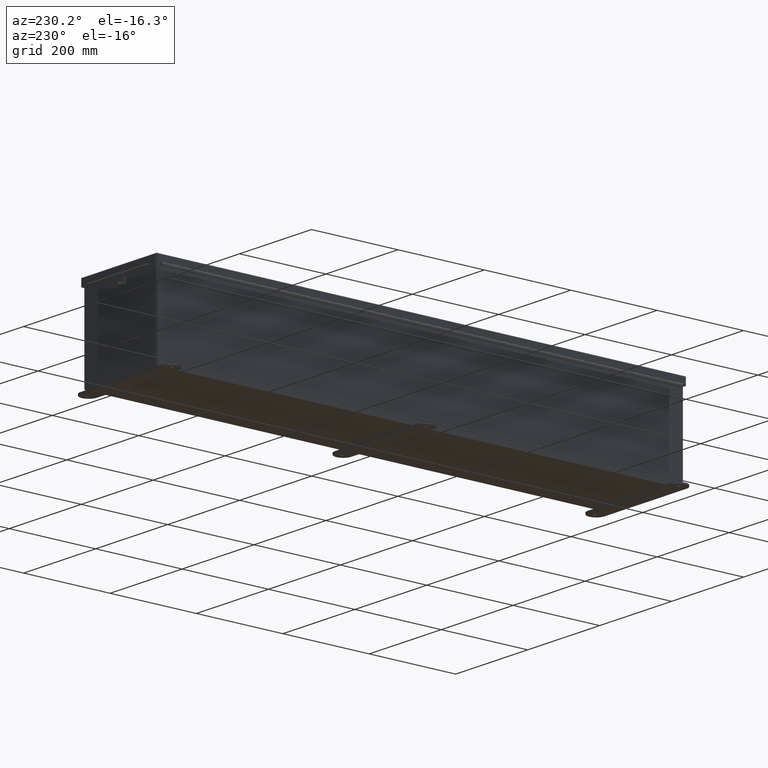
[diagram: clean part render]
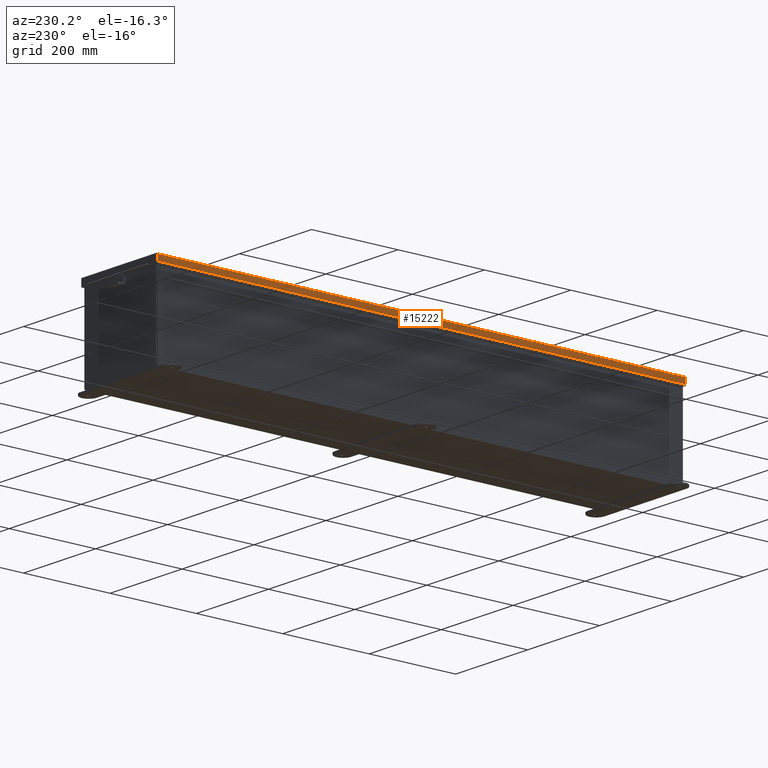
[diagram: same view with one face highlighted and labeled with its STEP entity id]
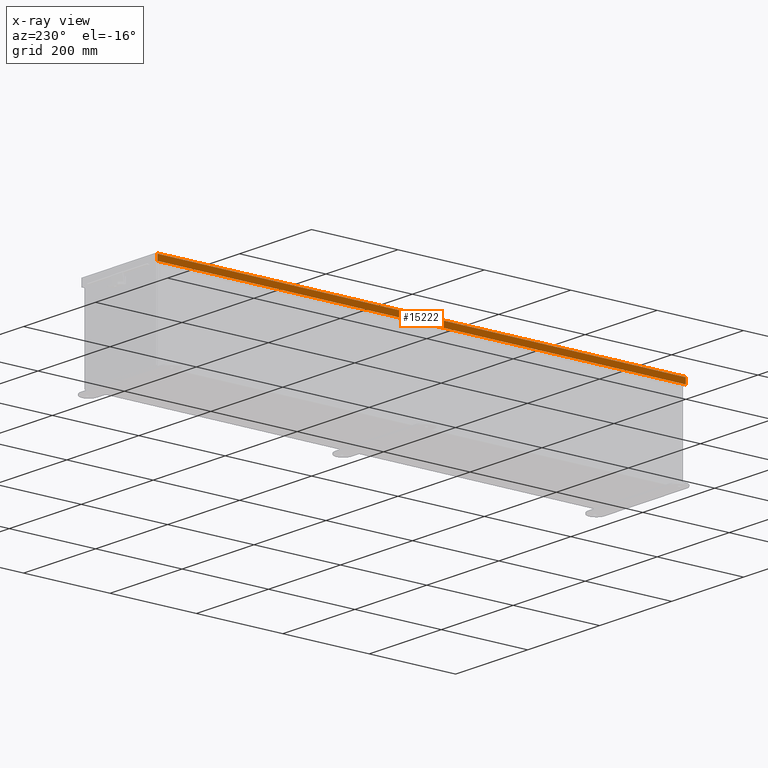
[diagram: x-ray of the same camera — body ghosted, the highlighted face saturated]
A machine part, auxiliary view. The second image highlights one B-rep face of the part: STEP entity #15222.
The next image is the same camera in x-ray: the body ghosted, the highlighted face saturated — about 0% of this face is hidden behind the body in this view.
In plain terms, the highlighted planar face has unit normal (1, -0, 0).
Its self-contained STEP definition (entity closure, byte-faithful):
#807 = VERTEX_POINT ( 'NONE', #23279 ) ;
#2626 = VERTEX_POINT ( 'NONE', #16813 ) ;
#5388 = CARTESIAN_POINT ( 'NONE',  ( 4.156250000000014200, 24.07447893218808600, 0.5502999999999999000 ) ) ;
#5908 = EDGE_CURVE ( 'NONE', #807, #18345, #14887, .T. ) ;
#6614 = ORIENTED_EDGE ( 'NONE', *, *, #14437, .F. ) ;
#6981 = EDGE_CURVE ( 'NONE', #2626, #36047, #23638, .T. ) ;
#7190 = DIRECTION ( 'NONE',  ( 3.971430846686188400E-015, 8.381647117973250400E-031, 1.000000000000000000 ) ) ;
#7376 = VECTOR ( 'NONE', #10152, 39.37007874015748100 ) ;
#9832 = CARTESIAN_POINT ( 'NONE',  ( 4.156250000000004400, 24.07447893218808600, -1.639108796198557900E-014 ) ) ;
#10152 = DIRECTION ( 'NONE',  ( 3.971430846686188400E-015, 8.381647117973250400E-031, 1.000000000000000000 ) ) ;
#11181 = ORIENTED_EDGE ( 'NONE', *, *, #6981, .F. ) ;
#14244 = LINE ( 'NONE', #18991, #27465 ) ;
#14437 = EDGE_CURVE ( 'NONE', #807, #2626, #35263, .T. ) ;
#14523 = FACE_OUTER_BOUND ( 'NONE', #17133, .T. ) ;
#14887 = LINE ( 'NONE', #9832, #7376 ) ;
#15222 = ADVANCED_FACE ( 'NONE', ( #14523 ), #30803, .F. ) ;
#16090 = AXIS2_PLACEMENT_3D ( 'NONE', #31016, #30495, #30491 ) ;
#16124 = VECTOR ( 'NONE', #7190, 39.37007874015748100 ) ;
#16294 = DIRECTION ( 'NONE',  ( -8.167918082642967100E-031, -1.000000000000000000, -2.958228394578794300E-031 ) ) ;
#16813 = CARTESIAN_POINT ( 'NONE',  ( 4.156250000000004400, -24.07447893218818200, 0.01299999999999901400 ) ) ;
#17133 = EDGE_LOOP ( 'NONE', ( #6614, #17612, #35664, #11181 ) ) ;
#17612 = ORIENTED_EDGE ( 'NONE', *, *, #5908, .T. ) ;
#18345 = VERTEX_POINT ( 'NONE', #5388 ) ;
#18991 = CARTESIAN_POINT ( 'NONE',  ( 4.156250000000014200, -2.134256245050205600E-018, 0.5503000000000010100 ) ) ;
#20324 = VECTOR ( 'NONE', #24414, 39.37007874015748100 ) ;
#23279 = CARTESIAN_POINT ( 'NONE',  ( 4.156250000000004400, 24.07447893218808600, 0.01300000000000010700 ) ) ;
#23638 = LINE ( 'NONE', #35755, #16124 ) ;
#24414 = DIRECTION ( 'NONE',  ( -8.167918082642967100E-031, -1.000000000000000000, -2.958228394578794300E-031 ) ) ;
#24876 = CARTESIAN_POINT ( 'NONE',  ( 4.156250000000004400, -24.15625000000005000, 0.01299999999999901400 ) ) ;
#27465 = VECTOR ( 'NONE', #16294, 39.37007874015748100 ) ;
#30491 = DIRECTION ( 'NONE',  ( 3.971430846686188400E-015, 8.381647117973250400E-031, 1.000000000000000000 ) ) ;
#30495 = DIRECTION ( 'NONE',  ( -1.000000000000000000, 2.227451021338443600E-031, 3.971430846686188400E-015 ) ) ;
#30803 = PLANE ( 'NONE',  #16090 ) ;
#31016 = CARTESIAN_POINT ( 'NONE',  ( 4.156250000000004400, 0.0000000000000000000, -1.639108796198557900E-014 ) ) ;
#33981 = CARTESIAN_POINT ( 'NONE',  ( 4.156250000000014200, -24.07447893218818200, 0.5502999999999999000 ) ) ;
#34188 = EDGE_CURVE ( 'NONE', #18345, #36047, #14244, .T. ) ;
#35263 = LINE ( 'NONE', #24876, #20324 ) ;
#35664 = ORIENTED_EDGE ( 'NONE', *, *, #34188, .T. ) ;
#35755 = CARTESIAN_POINT ( 'NONE',  ( 4.156250000000004400, -24.07447893218818200, -1.092739197465705300E-015 ) ) ;
#36047 = VERTEX_POINT ( 'NONE', #33981 ) ;